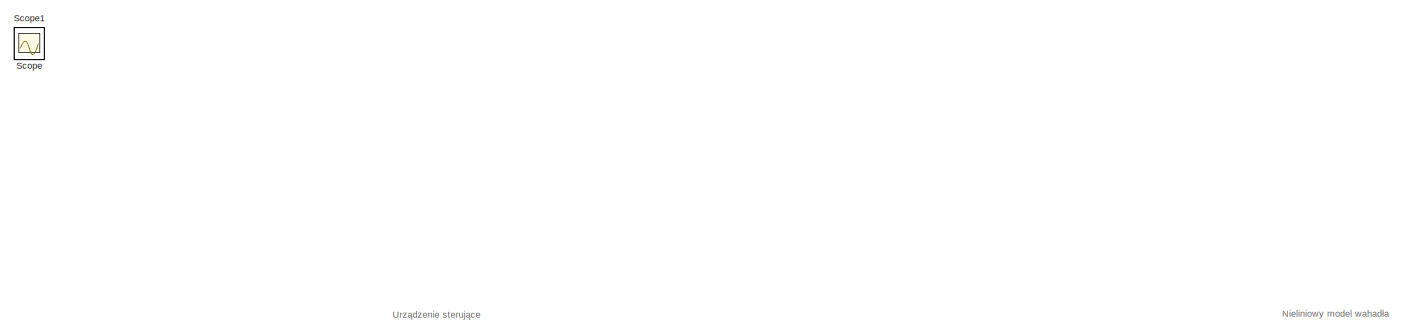
[diagram: root canvas - part 1/5, top left region]
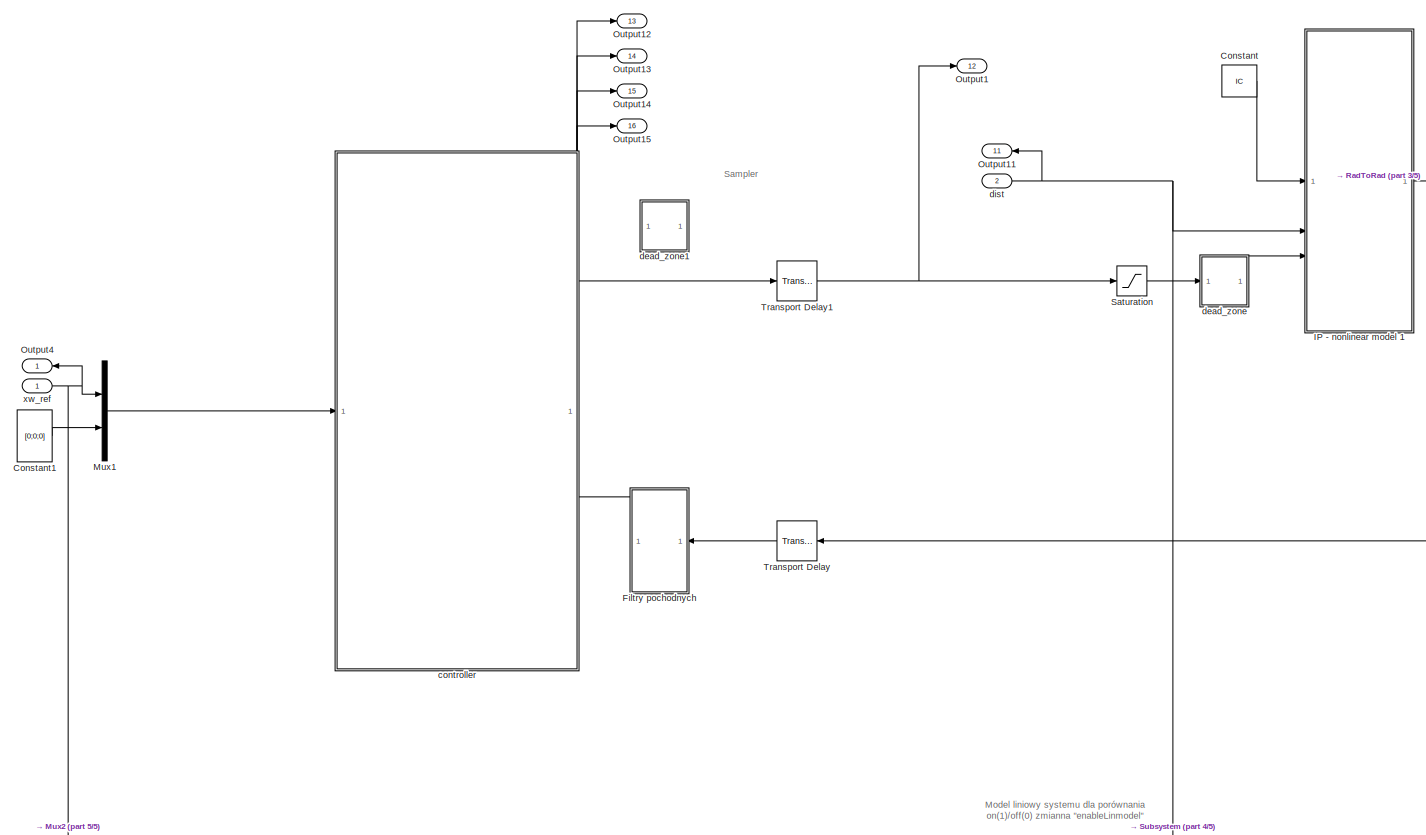
[diagram: root canvas - part 2/5, central region]
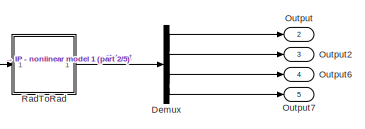
[diagram: root canvas - part 3/5, middle right region]
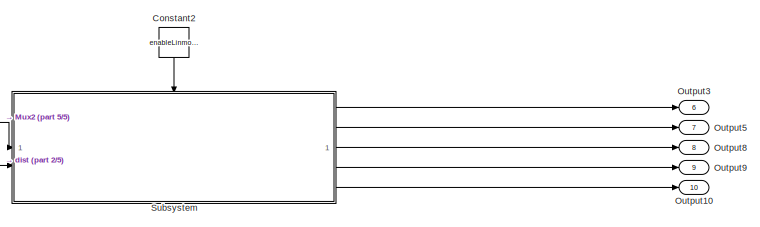
[diagram: root canvas - part 4/5, bottom right region]
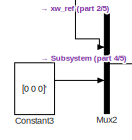
[diagram: root canvas - part 5/5, bottom left region]
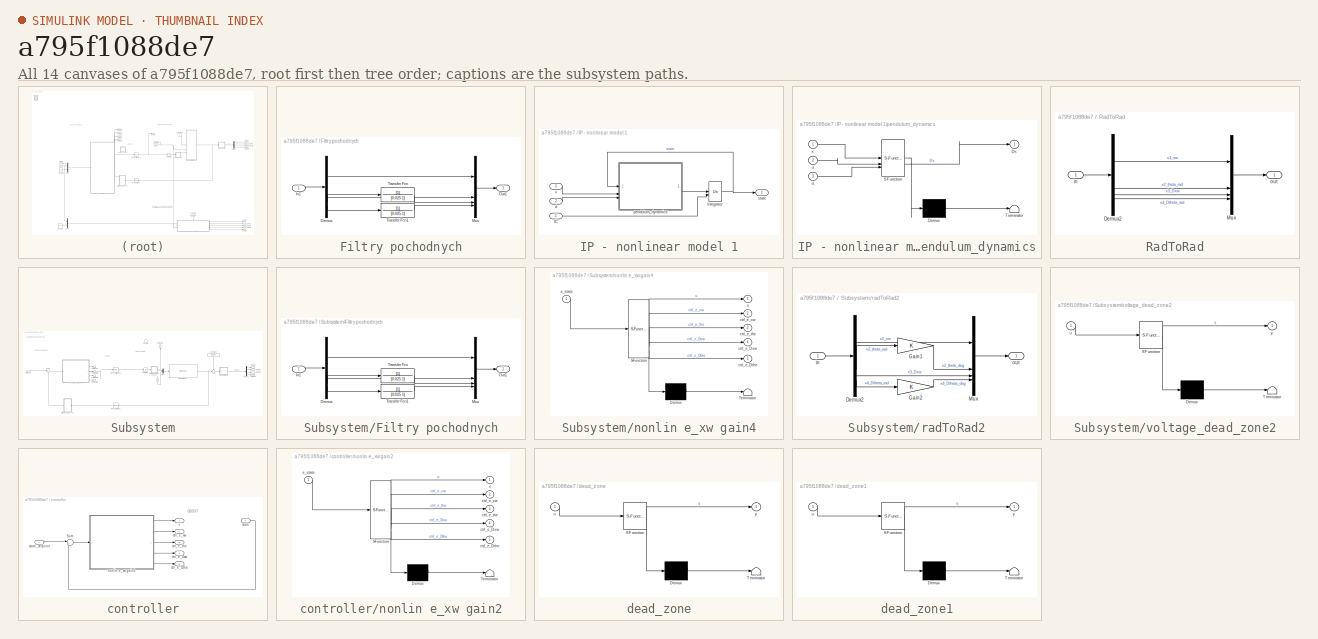
[diagram: thumbnail index - all 14 canvases of the model, root first then tree order]
MODEL slx_a795f1088de7
KIND model
CONFIG AbsTol = auto
CONFIG EnableMultiTasking = off
CONFIG FixedStep = dt
CONFIG MaxStep = 0.001
CONFIG MinStep = auto
CONFIG RelTol = 1e-3
CONFIG SampleTimeConstraint = Unconstrained
CONFIG SolverName = ode4
CONFIG StartTime = 0.0
CONFIG StopTime = end_time
BLOCK [Constant] Constant
  Value = IC
  VectorParams1D = off
BLOCK [Constant] Constant1
  Value = [0;0;0]
  VectorParams1D = off
BLOCK [Constant] Constant2
  NameLocation = left
  Value = enableLinmodel
BLOCK [Constant] Constant3
  Value = [0 0 0]'
  VectorParams1D = off
BLOCK [Demux] Demux
BLOCK [SubSystem] Filtry pochodnych
  NameLocation = top
BLOCK [Demux] Filtry pochodnych/Demux
BLOCK [Inport] Filtry pochodnych/In1
BLOCK [Mux] Filtry pochodnych/Mux
  DisplayOption = bar
BLOCK [Outport] Filtry pochodnych/Out1
BLOCK [TransferFcn] Filtry pochodnych/Transfer Fcn
  Denominator = [0.025 1]
BLOCK [TransferFcn] Filtry pochodnych/Transfer Fcn1
  Denominator = [0.025 1]
BLOCK [SubSystem] IP - nonlinear model 1
  Description = Nonlinear model of inverted pendulum
BLOCK [Inport] IP - nonlinear model 1/IC
BLOCK [Integrator] IP - nonlinear model 1/Integrator
  InitialConditionSource = external
BLOCK [Inport] IP - nonlinear model 1/d
  Port = 2
BLOCK [SubSystem] IP - nonlinear model 1/pendulum_dynamics
  ErrorFcn = Stateflow.Translate.translate
  PermitHierarchicalResolution = ExplicitOnly
  SFBlockType = MATLAB Function
  TreatAsAtomicUnit = on
BLOCK [Demux] IP - nonlinear model 1/pendulum_dynamics/ Demux 
  Outputs = 1
BLOCK [S-Function] IP - nonlinear model 1/pendulum_dynamics/ SFunction 
  EnableBusSupport = on
  FunctionName = sf_sfun
  Parameters = params_nonlin_stri
  PortCounts = [3 2]
  SFcnIsStateOwnerBlock = off
  SFunctionDeploymentMode = off
  Tag = Stateflow S-Function 1
BLOCK [Terminator] IP - nonlinear model 1/pendulum_dynamics/ Terminator 
BLOCK [Outport] IP - nonlinear model 1/pendulum_dynamics/Dx
BLOCK [Inport] IP - nonlinear model 1/pendulum_dynamics/d
  Port = 3
BLOCK [Inport] IP - nonlinear model 1/pendulum_dynamics/u
  Port = 2
BLOCK [Inport] IP - nonlinear model 1/pendulum_dynamics/x
BLOCK [Outport] IP - nonlinear model 1/state
BLOCK [Inport] IP - nonlinear model 1/v
  Port = 3
BLOCK [Mux] Mux1
  DisplayOption = bar
  Inputs = 2
BLOCK [Mux] Mux2
  DisplayOption = bar
  Inputs = 2
BLOCK [Outport] Output
  Port = 2
  SignalName = xw_nl
BLOCK [Outport] Output1
  Port = 12
  SignalName = ctrl_sig
BLOCK [Outport] Output10
  Port = 10
  SignalName = ctrl_sig_l
BLOCK [Outport] Output11
  NameLocation = top
  Port = 11
  SignalName = dist
BLOCK [Outport] Output12
  Port = 13
  SignalName = ctrl_e_xw
BLOCK [Outport] Output13
  Port = 14
  SignalName = ctrl_e_the
BLOCK [Outport] Output14
  Port = 15
  SignalName = ctrl_e_Dxw
BLOCK [Outport] Output15
  Port = 16
  SignalName = ctrl_e_Dthe
BLOCK [Outport] Output2
  Port = 3
  SignalName = the_nl
BLOCK [Outport] Output3
  Port = 6
  SignalName = xw_l
BLOCK [Outport] Output4
  NameLocation = top
  SignalName = xw_ref
BLOCK [Outport] Output5
  Port = 7
  SignalName = the_l
BLOCK [Outport] Output6
  Port = 4
  SignalName = Dxw_nl
BLOCK [Outport] Output7
  Port = 5
  SignalName = Dthe_nl
BLOCK [Outport] Output8
  Port = 8
  SignalName = Dxw_l
BLOCK [Outport] Output9
  Port = 9
  SignalName = Dthe_l
BLOCK [SubSystem] RadToRad
BLOCK [Demux] RadToRad/Demux2
BLOCK [Mux] RadToRad/Mux
  DisplayOption = bar
BLOCK [Inport] RadToRad/in
BLOCK [Outport] RadToRad/out
BLOCK [Saturate] Saturation
  LowerLimit = -12
  UpperLimit = 12
BLOCK [Scope] Scope
  Floating = off
  IOType = viewer
  NumInputPorts = 1
  ScopeSpecificationString = Simulink.scopes.TimeScopeBlockCfg('CurrentConfiguration', extmgr.ConfigurationSet(extmgr.Configuration('Core','General UI',true),extmgr.Configuration('Core','Source UI',true),extmgr.Configuration('Sources','WiredSimulink',true),extmgr.Configuration('Visuals','Time Domain',true,'SerializedDisplays',{struct('MinYLimReal','-1.11209','MaxYLimReal','1.88409','YLabelReal','','MinYLimMag','0.00000','MaxY...<+1433ch>
BLOCK [Scope] Scope1
  Floating = off
  IOType = viewer
  NumInputPorts = 1
  ScopeSpecificationString = Simulink.scopes.TimeScopeBlockCfg('CurrentConfiguration', extmgr.ConfigurationSet(extmgr.Configuration('Core','General UI',true),extmgr.Configuration('Core','Source UI',true),extmgr.Configuration('Sources','WiredSimulink',true,'DataLoggingVariableName','ScopeData1'),extmgr.Configuration('Visuals','Time Domain',true,'SerializedDisplays',{struct('MinYLimReal','-0.01388','MaxYLimReal','0.12494','YLab...<+1404ch>
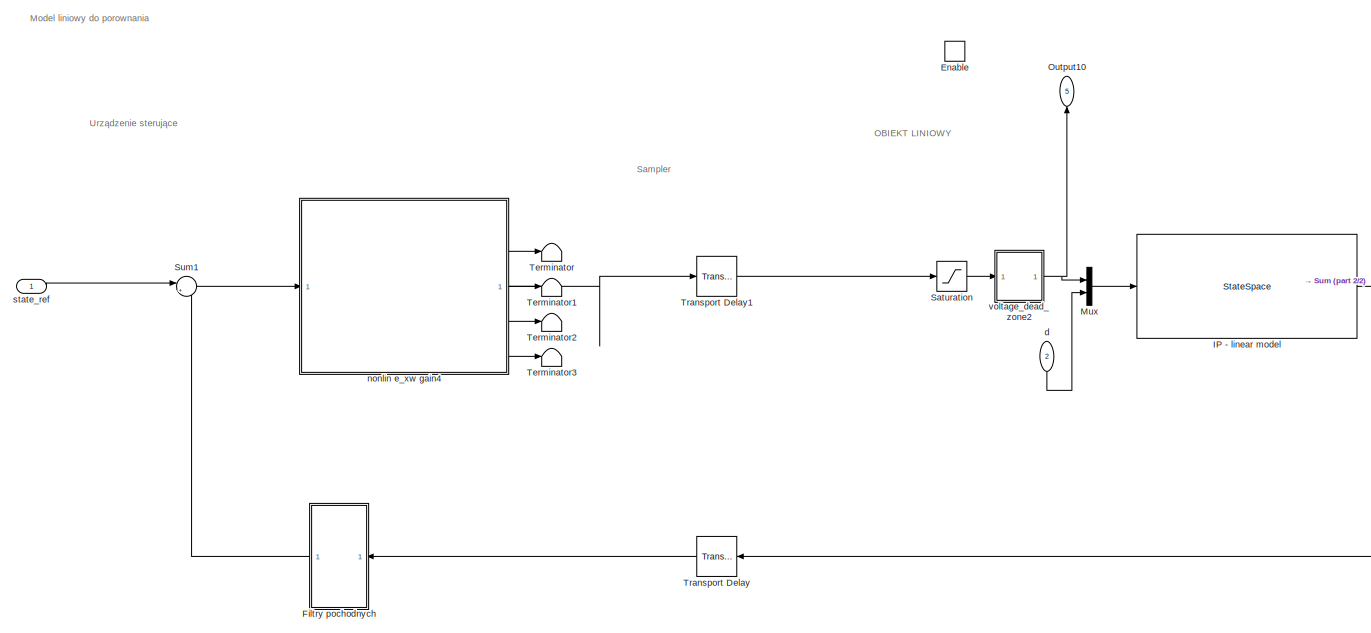
[diagram: Subsystem - part 1/2, most of the canvas]
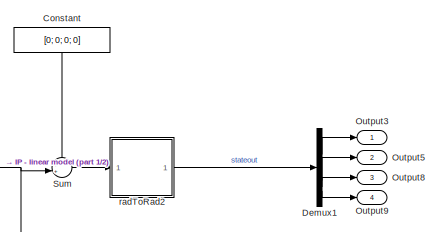
[diagram: Subsystem - part 2/2, middle right region]
BLOCK [SubSystem] Subsystem
BLOCK [Constant] Subsystem/Constant
  NameLocation = left
  Value = [0; 0; 0; 0]
BLOCK [Demux] Subsystem/Demux1
BLOCK [EnablePort] Subsystem/Enable
BLOCK [SubSystem] Subsystem/Filtry pochodnych
  NameLocation = top
BLOCK [Demux] Subsystem/Filtry pochodnych/Demux
BLOCK [Inport] Subsystem/Filtry pochodnych/In1
BLOCK [Mux] Subsystem/Filtry pochodnych/Mux
  DisplayOption = bar
BLOCK [Outport] Subsystem/Filtry pochodnych/Out1
BLOCK [TransferFcn] Subsystem/Filtry pochodnych/Transfer Fcn
  Denominator = [0.025 1]
BLOCK [TransferFcn] Subsystem/Filtry pochodnych/Transfer Fcn1
  Denominator = [0.025 1]
BLOCK [StateSpace] Subsystem/IP - linear model
  A = A
  B = [B,H]
  C = C
  D = [D,D]
  InitialCondition = IC_liniowy
BLOCK [Mux] Subsystem/Mux
  DisplayOption = bar
  Inputs = 2
BLOCK [Outport] Subsystem/Output10
  NameLocation = right
  Port = 5
BLOCK [Outport] Subsystem/Output3
BLOCK [Outport] Subsystem/Output5
  Port = 2
BLOCK [Outport] Subsystem/Output8
  Port = 3
BLOCK [Outport] Subsystem/Output9
  Port = 4
BLOCK [Saturate] Subsystem/Saturation
  LowerLimit = sat(1)
  UpperLimit = sat(2)
BLOCK [Sum] Subsystem/Sum
  Inputs = ++|
BLOCK [Sum] Subsystem/Sum1
  Inputs = |+-
BLOCK [Terminator] Subsystem/Terminator
BLOCK [Terminator] Subsystem/Terminator1
BLOCK [Terminator] Subsystem/Terminator2
BLOCK [Terminator] Subsystem/Terminator3
BLOCK [TransportDelay] Subsystem/Transport Delay
  DelayTime = 0.005
  InitialOutput = [track_len/2;0;0;0]
  NameLocation = top
  PadeOrder = 10
BLOCK [TransportDelay] Subsystem/Transport Delay1
  DelayTime = 0.005
  PadeOrder = 10
BLOCK [Inport] Subsystem/d
  NameLocation = left
  Port = 2
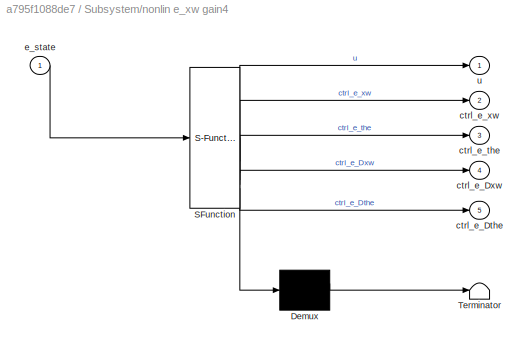
BLOCK [SubSystem] Subsystem/nonlin e_xw gain4
  ErrorFcn = Stateflow.Translate.translate
  LibrarySourceBlock = simulink/User-Defined\nFunctions/MATLAB Function
  PermitHierarchicalResolution = ExplicitOnly
  SFBlockType = MATLAB Function
  TreatAsAtomicUnit = on
BLOCK [Demux] Subsystem/nonlin e_xw gain4/ Demux 
  Outputs = 1
BLOCK [S-Function] Subsystem/nonlin e_xw gain4/ SFunction 
  EnableBusSupport = on
  FunctionName = sf_sfun
  Parameters = F,dead_zone_ctrl_ampl
  PortCounts = [1 6]
  SFcnIsStateOwnerBlock = off
  SFunctionDeploymentMode = off
  Tag = Stateflow S-Function 7
BLOCK [Terminator] Subsystem/nonlin e_xw gain4/ Terminator 
BLOCK [Outport] Subsystem/nonlin e_xw gain4/ctrl_e_Dthe
  Port = 5
BLOCK [Outport] Subsystem/nonlin e_xw gain4/ctrl_e_Dxw
  Port = 4
BLOCK [Outport] Subsystem/nonlin e_xw gain4/ctrl_e_the
  Port = 3
BLOCK [Outport] Subsystem/nonlin e_xw gain4/ctrl_e_xw
  Port = 2
BLOCK [Inport] Subsystem/nonlin e_xw gain4/e_state
BLOCK [Outport] Subsystem/nonlin e_xw gain4/u
BLOCK [SubSystem] Subsystem/radToRad2
BLOCK [Demux] Subsystem/radToRad2/Demux2
BLOCK [Gain] Subsystem/radToRad2/Gain1
BLOCK [Gain] Subsystem/radToRad2/Gain2
BLOCK [Mux] Subsystem/radToRad2/Mux
  DisplayOption = bar
BLOCK [Inport] Subsystem/radToRad2/in
BLOCK [Outport] Subsystem/radToRad2/out
BLOCK [Inport] Subsystem/state_ref
BLOCK [SubSystem] Subsystem/voltage_dead_zone2
  ErrorFcn = Stateflow.Translate.translate
  LibrarySourceBlock = simulink/User-Defined\nFunctions/MATLAB Function
  PermitHierarchicalResolution = ExplicitOnly
  SFBlockType = MATLAB Function
  TreatAsAtomicUnit = on
BLOCK [Demux] Subsystem/voltage_dead_zone2/ Demux 
  Outputs = 1
BLOCK [S-Function] Subsystem/voltage_dead_zone2/ SFunction 
  EnableBusSupport = on
  FunctionName = sf_sfun
  Parameters = dead_zone_ampl
  PortCounts = [1 2]
  SFcnIsStateOwnerBlock = off
  SFunctionDeploymentMode = off
  Tag = Stateflow S-Function 3
BLOCK [Terminator] Subsystem/voltage_dead_zone2/ Terminator 
BLOCK [Inport] Subsystem/voltage_dead_zone2/u
BLOCK [Outport] Subsystem/voltage_dead_zone2/y
BLOCK [TransportDelay] Transport Delay
  DelayTime = 0.005
  InitialOutput = [track_len/2;pi;0;0]
  NameLocation = top
  PadeOrder = 10
BLOCK [TransportDelay] Transport Delay1
  DelayTime = 0.005
  PadeOrder = 10
BLOCK [SubSystem] controller
  PortSchema = {"entries":[{"content":{"sides":[{"content":{"connectorIds":["In1"]},"type":"ConnectorPlacement.EquallySpacedRectSide","uuid":"6de1dc69-5efb-4201-9eee-dce886879f47"},{"content":{"connectorIds":["Out1","In2"],"side":"RIGHT"},"type":"ConnectorPlacement.EquallySpacedRectSide","uuid":"f5fecc05-d223-4a83-8c79-e750f1bc671b"},{"content":{"connectorIds":["Out2","Out3","Out4","Out5"],"side":"TOP"},"type":"...<+399ch>
BLOCK [Sum] controller/Sum
  Inputs = |+-
BLOCK [Outport] controller/ctrl_e_Dthe
  NameLocation = right
  Port = 5
BLOCK [Outport] controller/ctrl_e_Dxw
  NameLocation = right
  Port = 4
BLOCK [Outport] controller/ctrl_e_the
  NameLocation = right
  Port = 3
BLOCK [Outport] controller/ctrl_e_xw
  NameLocation = right
  Port = 2
BLOCK [SubSystem] controller/nonlin e_xw gain2
  ErrorFcn = Stateflow.Translate.translate
  LibrarySourceBlock = simulink/User-Defined\nFunctions/MATLAB Function
  PermitHierarchicalResolution = ExplicitOnly
  SFBlockType = MATLAB Function
  TreatAsAtomicUnit = on
BLOCK [Demux] controller/nonlin e_xw gain2/ Demux 
  Outputs = 1
BLOCK [S-Function] controller/nonlin e_xw gain2/ SFunction 
  EnableBusSupport = on
  FunctionName = sf_sfun
  Parameters = F,dead_zone_ctrl_ampl
  PortCounts = [1 6]
  SFcnIsStateOwnerBlock = off
  SFunctionDeploymentMode = off
  Tag = Stateflow S-Function 4
BLOCK [Terminator] controller/nonlin e_xw gain2/ Terminator 
BLOCK [Outport] controller/nonlin e_xw gain2/ctrl_e_Dthe
  Port = 5
BLOCK [Outport] controller/nonlin e_xw gain2/ctrl_e_Dxw
  Port = 4
BLOCK [Outport] controller/nonlin e_xw gain2/ctrl_e_the
  Port = 3
BLOCK [Outport] controller/nonlin e_xw gain2/ctrl_e_xw
  Port = 2
BLOCK [Inport] controller/nonlin e_xw gain2/e_state
BLOCK [Outport] controller/nonlin e_xw gain2/u
BLOCK [Inport] controller/state
  NameLocation = left
  Port = 2
BLOCK [Inport] controller/state_setpoint
BLOCK [Outport] controller/v
  NameLocation = right
BLOCK [SubSystem] dead_zone
  ErrorFcn = Stateflow.Translate.translate
  LibrarySourceBlock = simulink/User-Defined\nFunctions/MATLAB Function
  PermitHierarchicalResolution = ExplicitOnly
  SFBlockType = MATLAB Function
  TreatAsAtomicUnit = on
BLOCK [Demux] dead_zone/ Demux 
  Outputs = 1
BLOCK [S-Function] dead_zone/ SFunction 
  EnableBusSupport = on
  FunctionName = sf_sfun
  Parameters = dead_zone_ampl
  PortCounts = [1 2]
  SFcnIsStateOwnerBlock = off
  SFunctionDeploymentMode = off
  Tag = Stateflow S-Function 2
BLOCK [Terminator] dead_zone/ Terminator 
BLOCK [Inport] dead_zone/u
BLOCK [Outport] dead_zone/y
BLOCK [SubSystem] dead_zone1
  Commented = on
  ErrorFcn = Stateflow.Translate.translate
  LibrarySourceBlock = simulink/User-Defined\nFunctions/MATLAB Function
  PermitHierarchicalResolution = ExplicitOnly
  SFBlockType = MATLAB Function
  TreatAsAtomicUnit = on
BLOCK [Demux] dead_zone1/ Demux 
  Outputs = 1
BLOCK [S-Function] dead_zone1/ SFunction 
  EnableBusSupport = on
  FunctionName = sf_sfun
  Parameters = dead_zone_ctrl_ampl
  PortCounts = [1 2]
  SFcnIsStateOwnerBlock = off
  SFunctionDeploymentMode = off
  Tag = Stateflow S-Function 8
BLOCK [Terminator] dead_zone1/ Terminator 
BLOCK [Inport] dead_zone1/u
BLOCK [Outport] dead_zone1/y
BLOCK [Inport] dist
  NameLocation = left
  Port = 2
BLOCK [Inport] xw_ref
  NameLocation = left
ANNOTATION (root): Model liniowy systemu dla porównania on(1)/off(0) zmianna "enableLinmodel"
ANNOTATION (root): Nieliniowy model wahadła
ANNOTATION (root): Sampler
ANNOTATION (root): Urządzenie sterujące
ANNOTATION Subsystem: Model liniowy do porownania
ANNOTATION Subsystem: OBIEKT LINIOWY
ANNOTATION Subsystem: Sampler
ANNOTATION Subsystem: Urządzenie sterujące
ANNOTATION controller: OBIEKT
LINE Constant1:1 -> Mux1:2
LINE Constant2:1 -> Subsystem:enable
LINE Constant3:1 -> Mux2:2
LINE Constant:1 -> IP - nonlinear model 1:1
LINE Demux:1 -> Output:1
LINE Demux:2 -> Output2:1
LINE Demux:3 -> Output6:1
LINE Demux:4 -> Output7:1
LINE Filtry pochodnych/Demux:1 -> Filtry pochodnych/Mux:1
LINE Filtry pochodnych/Demux:2 -> Filtry pochodnych/Mux:2
LINE Filtry pochodnych/Demux:3 -> Filtry pochodnych/Transfer Fcn:1
LINE Filtry pochodnych/Demux:4 -> Filtry pochodnych/Transfer Fcn1:1
LINE Filtry pochodnych/In1:1 -> Filtry pochodnych/Demux:1
LINE Filtry pochodnych/Mux:1 -> Filtry pochodnych/Out1:1
LINE Filtry pochodnych/Transfer Fcn1:1 -> Filtry pochodnych/Mux:4
LINE Filtry pochodnych/Transfer Fcn:1 -> Filtry pochodnych/Mux:3
LINE Filtry pochodnych:1 -> controller:2
LINE IP - nonlinear model 1/IC:1 -> IP - nonlinear model 1/Integrator:2
NET IP - nonlinear model 1/Integrator:1 -> IP - nonlinear model 1/pendulum_dynamics:1, IP - nonlinear model 1/state:1
LINE IP - nonlinear model 1/d:1 -> IP - nonlinear model 1/pendulum_dynamics:3
LINE IP - nonlinear model 1/pendulum_dynamics:1 -> IP - nonlinear model 1/Integrator:1
LINE IP - nonlinear model 1/v:1 -> IP - nonlinear model 1/pendulum_dynamics:2
NET IP - nonlinear model 1:1 -> RadToRad:1, Transport Delay:1
LINE Mux1:1 -> controller:1
LINE Mux2:1 -> Subsystem:1
LINE RadToRad/Demux2:1 -> RadToRad/Mux:1
LINE RadToRad/Demux2:2 -> RadToRad/Mux:2
LINE RadToRad/Demux2:3 -> RadToRad/Mux:3
LINE RadToRad/Demux2:4 -> RadToRad/Mux:4
LINE RadToRad/Mux:1 -> RadToRad/out:1
LINE RadToRad/in:1 -> RadToRad/Demux2:1
LINE RadToRad:1 -> Demux:1
LINE Saturation:1 -> dead_zone:1
LINE Subsystem/Constant:1 -> Subsystem/Sum:1
LINE Subsystem/Demux1:1 -> Subsystem/Output3:1
LINE Subsystem/Demux1:2 -> Subsystem/Output5:1
LINE Subsystem/Demux1:3 -> Subsystem/Output8:1
LINE Subsystem/Demux1:4 -> Subsystem/Output9:1
LINE Subsystem/Filtry pochodnych/Demux:1 -> Subsystem/Filtry pochodnych/Mux:1
LINE Subsystem/Filtry pochodnych/Demux:2 -> Subsystem/Filtry pochodnych/Mux:2
LINE Subsystem/Filtry pochodnych/Demux:3 -> Subsystem/Filtry pochodnych/Transfer Fcn:1
LINE Subsystem/Filtry pochodnych/Demux:4 -> Subsystem/Filtry pochodnych/Transfer Fcn1:1
LINE Subsystem/Filtry pochodnych/In1:1 -> Subsystem/Filtry pochodnych/Demux:1
LINE Subsystem/Filtry pochodnych/Mux:1 -> Subsystem/Filtry pochodnych/Out1:1
LINE Subsystem/Filtry pochodnych/Transfer Fcn1:1 -> Subsystem/Filtry pochodnych/Mux:4
LINE Subsystem/Filtry pochodnych/Transfer Fcn:1 -> Subsystem/Filtry pochodnych/Mux:3
LINE Subsystem/Filtry pochodnych:1 -> Subsystem/Sum1:2
NET Subsystem/IP - linear model:1 -> Subsystem/Sum:2, Subsystem/Transport Delay:1
LINE Subsystem/Mux:1 -> Subsystem/IP - linear model:1
LINE Subsystem/Saturation:1 -> Subsystem/voltage_dead_zone2:1
LINE Subsystem/Sum1:1 -> Subsystem/nonlin e_xw gain4:1
LINE Subsystem/Sum:1 -> Subsystem/radToRad2:1
LINE Subsystem/Transport Delay1:1 -> Subsystem/Saturation:1
LINE Subsystem/Transport Delay:1 -> Subsystem/Filtry pochodnych:1
LINE Subsystem/d:1 -> Subsystem/Mux:2
LINE Subsystem/nonlin e_xw gain4:1 -> Subsystem/Transport Delay1:1
LINE Subsystem/nonlin e_xw gain4:2 -> Subsystem/Terminator:1
LINE Subsystem/nonlin e_xw gain4:3 -> Subsystem/Terminator1:1
LINE Subsystem/nonlin e_xw gain4:4 -> Subsystem/Terminator2:1
LINE Subsystem/nonlin e_xw gain4:5 -> Subsystem/Terminator3:1
LINE Subsystem/radToRad2/Demux2:1 -> Subsystem/radToRad2/Mux:1
LINE Subsystem/radToRad2/Demux2:2 -> Subsystem/radToRad2/Gain1:1
LINE Subsystem/radToRad2/Demux2:3 -> Subsystem/radToRad2/Mux:3
LINE Subsystem/radToRad2/Demux2:4 -> Subsystem/radToRad2/Gain2:1
LINE Subsystem/radToRad2/Gain1:1 -> Subsystem/radToRad2/Mux:2
LINE Subsystem/radToRad2/Gain2:1 -> Subsystem/radToRad2/Mux:4
LINE Subsystem/radToRad2/Mux:1 -> Subsystem/radToRad2/out:1
LINE Subsystem/radToRad2/in:1 -> Subsystem/radToRad2/Demux2:1
LINE Subsystem/radToRad2:1 -> Subsystem/Demux1:1
LINE Subsystem/state_ref:1 -> Subsystem/Sum1:1
NET Subsystem/voltage_dead_zone2:1 -> Subsystem/Mux:1, Subsystem/Output10:1
LINE Subsystem:1 -> Output3:1
LINE Subsystem:2 -> Output5:1
LINE Subsystem:3 -> Output8:1
LINE Subsystem:4 -> Output9:1
LINE Subsystem:5 -> Output10:1
NET Transport Delay1:1 -> Output1:1, Saturation:1
LINE Transport Delay:1 -> Filtry pochodnych:1
LINE controller/Sum:1 -> controller/nonlin e_xw gain2:1
LINE controller/nonlin e_xw gain2:1 -> controller/v:1
LINE controller/nonlin e_xw gain2:2 -> controller/ctrl_e_xw:1
LINE controller/nonlin e_xw gain2:3 -> controller/ctrl_e_the:1
LINE controller/nonlin e_xw gain2:4 -> controller/ctrl_e_Dxw:1
LINE controller/nonlin e_xw gain2:5 -> controller/ctrl_e_Dthe:1
LINE controller/state:1 -> controller/Sum:2
LINE controller/state_setpoint:1 -> controller/Sum:1
LINE controller:1 -> Transport Delay1:1
LINE controller:2 -> Output12:1
LINE controller:3 -> Output13:1
LINE controller:4 -> Output14:1
LINE controller:5 -> Output15:1
LINE dead_zone:1 -> IP - nonlinear model 1:3
NET dist:1 -> IP - nonlinear model 1:2, Output11:1, Subsystem:2
NET xw_ref:1 -> Mux1:1, Mux2:1, Output4:1
note: NET lines group one-source signal fan-out (src -> all destinations, sorted); 1:1 wires keep LINE
CHART IP - nonlinear model 1/pendulum_dynamics states=1 transitions=1
  STATE_LABEL 'eML_blk_kernel()'
  STATE_LABEL 'SCRIPT:\nfunction Dx = dynamika_wahadla(x, u, d, params_nonlin_stri)\n% x : stan\n% u : input - napięcie\n%\n% params scope: "parameters"\n%\n\n% State, function input: x = [x Dx theta Dtheta]\'\n% x1 = x(1);\nx2 = x(2);\nx3 = x(3);\nx4 = x(4);\n\nparams_stribeck = num2cell(params_nonlin_stri);\n[M, mp, mc, Lp, alpha_dcm, B, gamma_stri, miu_c, miu_s, vs] = params_stribeck{:};\n\ng = 9.8145;\nLc = 2*Lp;\nmr = mc + mp;...<+553ch>'
CHART dead_zone states=1 transitions=1
  STATE_LABEL 'eML_blk_kernel()'
  STATE_LABEL 'SCRIPT:\nfunction y = fcn(u, dead_zone_ampl)\n    if (abs(u) < dead_zone_ampl)\n        y = 0;\n    else\n        y = u;\n    end\nend'
CHART Subsystem/voltage_dead_zone2 states=1 transitions=1
  STATE_LABEL 'eML_blk_kernel()'
  STATE_LABEL 'SCRIPT:\nfunction y = fcn(u, dead_zone_ampl)\n    if (abs(u) < dead_zone_ampl)\n        y = 0;\n    else\n        y = u;\n    end\nend'
CHART controller/nonlin e_xw gain2 states=1 transitions=1
  STATE_LABEL 'eML_blk_kernel()'
  STATE_LABEL 'SCRIPT:\nfunction [u, ctrl_e_xw, ctrl_e_the, ctrl_e_Dxw, ctrl_e_Dthe] = fcn(e_state,F, dead_zone_ctrl_ampl)\n    % ~~~~~~~~~~~~~~~~~~~~~~~~~~~~~~~~~~~~~~~~~~~~~~~~~~~~~~~~~~~~~~~~~~~~~~~~~~~~~~~~~~~~~~~~\n    % Uchyby zmiennych stanu = minus zmienne przyrostowe\n    % ~~~~~~~~~~~~~~~~~~~~~~~~~~~~~~~~~~~~~~~~~~~~~~~~~~~~~~~~~~~~~~~~~~~~~~~~~~~~~~~~~~~~~~~~\n    e_xw     = e_state(1);\n    e_the    = e_st...<+1996ch>'
CHART Subsystem/nonlin e_xw gain4 states=1 transitions=1
  STATE_LABEL 'eML_blk_kernel()'
  STATE_LABEL 'SCRIPT:\nfunction [u, ctrl_e_xw, ctrl_e_the, ctrl_e_Dxw, ctrl_e_Dthe] = fcn(e_state,F, dead_zone_ctrl_ampl)\n    % ~~~~~~~~~~~~~~~~~~~~~~~~~~~~~~~~~~~~~~~~~~~~~~~~~~~~~~~~~~~~~~~~~~~~~~~~~~~~~~~~~~~~~~~~\n    % Uchyby zmiennych stanu = minus zmienne przyrostowe\n    % ~~~~~~~~~~~~~~~~~~~~~~~~~~~~~~~~~~~~~~~~~~~~~~~~~~~~~~~~~~~~~~~~~~~~~~~~~~~~~~~~~~~~~~~~\n    e_xw     = e_state(1);\n    e_the    = e_st...<+1996ch>'
CHART dead_zone1 states=1 transitions=1
  STATE_LABEL 'eML_blk_kernel()'
  STATE_LABEL 'SCRIPT:\nfunction y = fcn(u, dead_zone_ctrl_ampl)\n    if (abs(u) < dead_zone_ctrl_ampl)\n        y = 0;\n    else\n        y = u;\n    end\nend'
CHART  states=0 transitions=0
CHART  states=0 transitions=0
CHART  states=0 transitions=0
CHART  states=0 transitions=0
CHART  states=0 transitions=0
CHART  states=0 transitions=0
